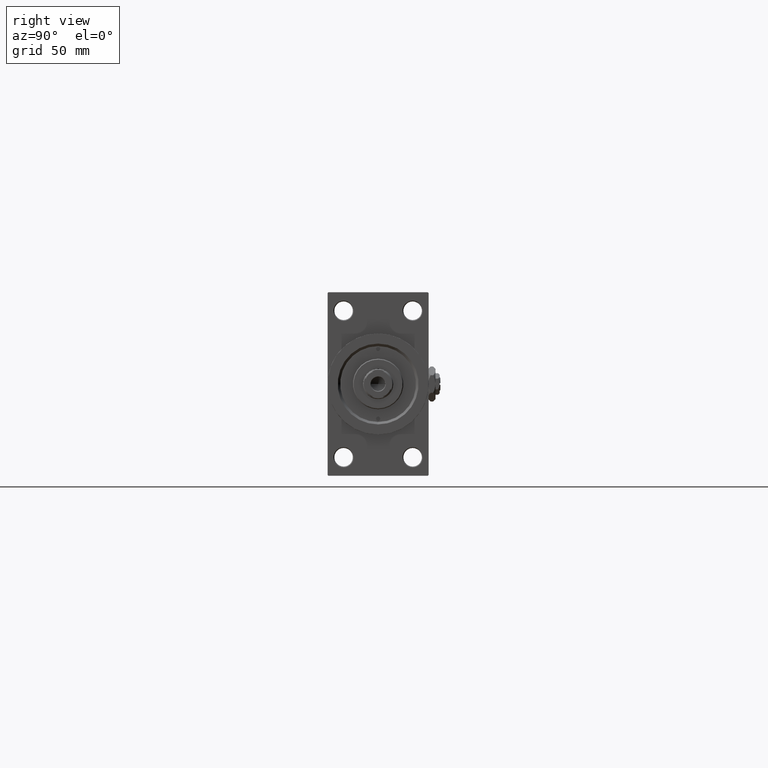
[diagram: clean part render]
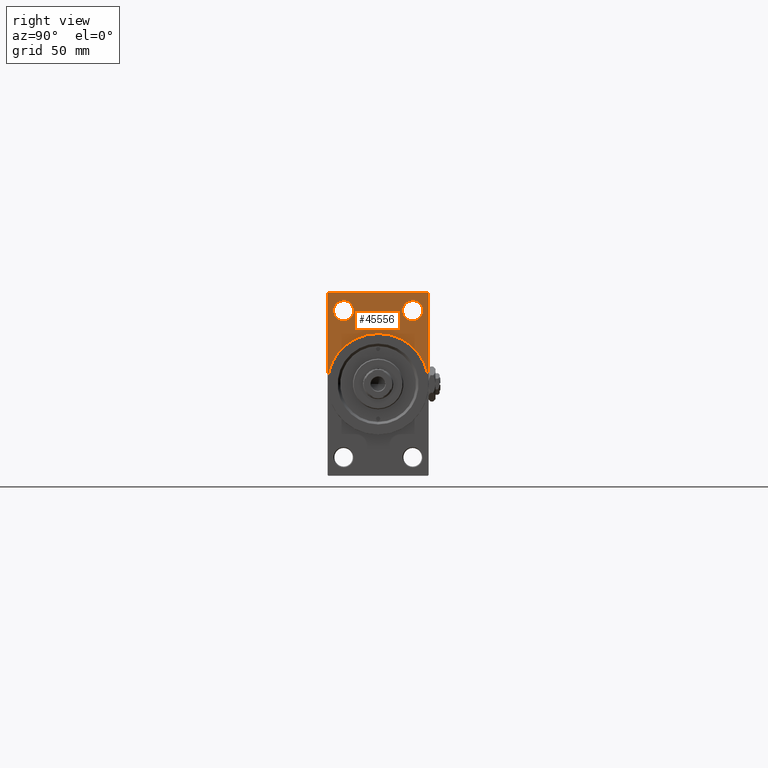
[diagram: same view with one face highlighted and labeled with its STEP entity id]
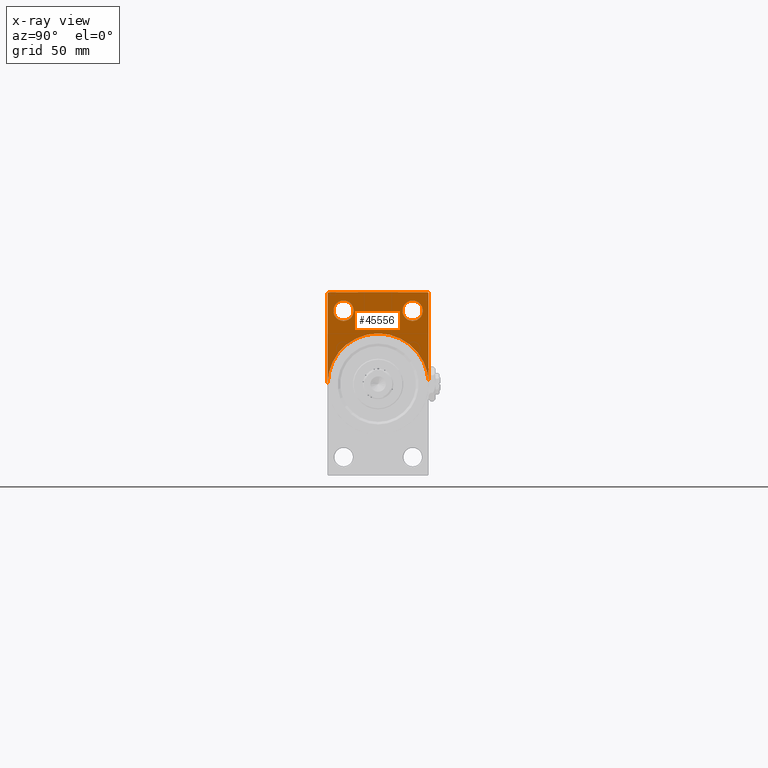
[diagram: x-ray of the same camera — body ghosted, the highlighted face saturated]
A machine part, right view. The second image highlights one B-rep face of the part: STEP entity #45556.
The next image is the same camera in x-ray: the body ghosted, the highlighted face saturated — about 0% of this face is hidden behind the body in this view.
In plain terms, the highlighted planar face has unit normal (-1, 0, 0).
Its self-contained STEP definition (entity closure, byte-faithful):
#573 = ORIENTED_EDGE ( 'NONE', *, *, #13550, .F. ) ;
#1189 = DIRECTION ( 'NONE',  ( -1.000000000000000000, 0.000000000000000000, -0.000000000000000000 ) ) ;
#1260 = AXIS2_PLACEMENT_3D ( 'NONE', #46105, #12041, #34903 ) ;
#2092 = ORIENTED_EDGE ( 'NONE', *, *, #22805, .T. ) ;
#3110 = CARTESIAN_POINT ( 'NONE',  ( 367.9999999999999432, 29.50000000000004974, 54.49999999999999289 ) ) ;
#4059 = VERTEX_POINT ( 'NONE', #6724 ) ;
#4080 = AXIS2_PLACEMENT_3D ( 'NONE', #5779, #43556, #35592 ) ;
#4086 = VECTOR ( 'NONE', #27338, 1000.000000000000000 ) ;
#4460 = CARTESIAN_POINT ( 'NONE',  ( 367.9999999999999432, 29.99999999999999645, 54.49999999999999289 ) ) ;
#4672 = CARTESIAN_POINT ( 'NONE',  ( 367.9999999999999432, 0.000000000000000000, 30.00000000000000000 ) ) ;
#5235 = CARTESIAN_POINT ( 'NONE',  ( 367.9999999999999432, 20.50000000000000000, 43.50000000000000000 ) ) ;
#5315 = CARTESIAN_POINT ( 'NONE',  ( 367.9999999999999432, 20.50000000000000000, 49.50000000000000000 ) ) ;
#5779 = CARTESIAN_POINT ( 'NONE',  ( 367.9999999999999432, 0.000000000000000000, 0.000000000000000000 ) ) ;
#6012 = EDGE_LOOP ( 'NONE', ( #12542, #22406 ) ) ;
#6400 = LINE ( 'NONE', #22308, #34433 ) ;
#6632 = VERTEX_POINT ( 'NONE', #5315 ) ;
#6724 = CARTESIAN_POINT ( 'NONE',  ( 367.9999999999999432, -20.50000000000000000, 49.50000000000000000 ) ) ;
#6753 = LINE ( 'NONE', #26626, #14357 ) ;
#6828 = CIRCLE ( 'NONE', #1260, 6.000000000000005329 ) ;
#6831 = DIRECTION ( 'NONE',  ( -1.000000000000000000, 0.000000000000000000, -0.000000000000000000 ) ) ;
#7834 = VERTEX_POINT ( 'NONE', #7887 ) ;
#7887 = CARTESIAN_POINT ( 'NONE',  ( 367.9999999999999432, 20.50000000000000000, 37.49999999999999289 ) ) ;
#8604 = DIRECTION ( 'NONE',  ( 0.000000000000000000, -1.000000000000000000, 1.156482317317871478E-16 ) ) ;
#9955 = DIRECTION ( 'NONE',  ( 0.000000000000000000, 0.000000000000000000, 1.000000000000000000 ) ) ;
#10153 = CIRCLE ( 'NONE', #22876, 6.000000000000005329 ) ;
#10481 = VERTEX_POINT ( 'NONE', #47993 ) ;
#10932 = CARTESIAN_POINT ( 'NONE',  ( 367.9999999999999432, 0.000000000000000000, 0.000000000000000000 ) ) ;
#11120 = EDGE_LOOP ( 'NONE', ( #14655, #28905, #23254, #23550, #19905, #573, #36595 ) ) ;
#11333 = CIRCLE ( 'NONE', #21626, 6.000000000000005329 ) ;
#12041 = DIRECTION ( 'NONE',  ( -1.000000000000000000, 0.000000000000000000, -0.000000000000000000 ) ) ;
#12284 = DIRECTION ( 'NONE',  ( 0.000000000000000000, 0.000000000000000000, 1.000000000000000000 ) ) ;
#12517 = EDGE_CURVE ( 'NONE', #13038, #46844, #14396, .T. ) ;
#12542 = ORIENTED_EDGE ( 'NONE', *, *, #17936, .T. ) ;
#12782 = CARTESIAN_POINT ( 'NONE',  ( 367.9999999999999432, 20.50000000000000000, 43.50000000000000000 ) ) ;
#13038 = VERTEX_POINT ( 'NONE', #20317 ) ;
#13410 = VERTEX_POINT ( 'NONE', #43296 ) ;
#13480 = VERTEX_POINT ( 'NONE', #37779 ) ;
#13550 = EDGE_CURVE ( 'NONE', #10481, #13038, #38756, .T. ) ;
#14357 = VECTOR ( 'NONE', #26386, 1000.000000000000000 ) ;
#14396 = CIRCLE ( 'NONE', #47765, 30.00000000000000000 ) ;
#14655 = ORIENTED_EDGE ( 'NONE', *, *, #36427, .T. ) ;
#14816 = VERTEX_POINT ( 'NONE', #40971 ) ;
#15633 = DIRECTION ( 'NONE',  ( -0.000000000000000000, 0.000000000000000000, 1.000000000000000000 ) ) ;
#17936 = EDGE_CURVE ( 'NONE', #7834, #6632, #11333, .T. ) ;
#18090 = LINE ( 'NONE', #33227, #48421 ) ;
#18227 = VECTOR ( 'NONE', #8604, 1000.000000000000000 ) ;
#19553 = AXIS2_PLACEMENT_3D ( 'NONE', #12782, #19758, #12284 ) ;
#19758 = DIRECTION ( 'NONE',  ( -1.000000000000000000, 0.000000000000000000, -0.000000000000000000 ) ) ;
#19860 = FACE_OUTER_BOUND ( 'NONE', #11120, .T. ) ;
#19905 = ORIENTED_EDGE ( 'NONE', *, *, #12517, .F. ) ;
#20317 = CARTESIAN_POINT ( 'NONE',  ( 367.9999999999999432, 30.00000000000000000, 0.000000000000000000 ) ) ;
#21626 = AXIS2_PLACEMENT_3D ( 'NONE', #5235, #44008, #9955 ) ;
#22308 = CARTESIAN_POINT ( 'NONE',  ( 367.9999999999999432, -30.00000000000000000, 53.99999999999988631 ) ) ;
#22406 = ORIENTED_EDGE ( 'NONE', *, *, #27172, .T. ) ;
#22698 = CIRCLE ( 'NONE', #19553, 6.000000000000005329 ) ;
#22805 = EDGE_CURVE ( 'NONE', #4059, #13480, #10153, .T. ) ;
#22876 = AXIS2_PLACEMENT_3D ( 'NONE', #26467, #6831, #26216 ) ;
#23254 = ORIENTED_EDGE ( 'NONE', *, *, #38881, .T. ) ;
#23550 = ORIENTED_EDGE ( 'NONE', *, *, #44227, .F. ) ;
#23822 = FACE_BOUND ( 'NONE', #6012, .T. ) ;
#25293 = EDGE_LOOP ( 'NONE', ( #30962, #2092 ) ) ;
#25523 = CIRCLE ( 'NONE', #4080, 30.00000000000000000 ) ;
#26216 = DIRECTION ( 'NONE',  ( 0.000000000000000000, 0.000000000000000000, 1.000000000000000000 ) ) ;
#26386 = DIRECTION ( 'NONE',  ( 0.000000000000000000, 0.000000000000000000, -1.000000000000000000 ) ) ;
#26467 = CARTESIAN_POINT ( 'NONE',  ( 367.9999999999999432, -20.50000000000000000, 43.50000000000000000 ) ) ;
#26626 = CARTESIAN_POINT ( 'NONE',  ( 367.9999999999999432, -30.00000000000000000, 54.50000000000000000 ) ) ;
#26796 = PLANE ( 'NONE',  #40673 ) ;
#26927 = CARTESIAN_POINT ( 'NONE',  ( 367.9999999999999432, -30.00000000000000000, 53.99999999999988631 ) ) ;
#27172 = EDGE_CURVE ( 'NONE', #6632, #7834, #22698, .T. ) ;
#27186 = EDGE_CURVE ( 'NONE', #13480, #4059, #6828, .T. ) ;
#27303 = CARTESIAN_POINT ( 'NONE',  ( 367.9999999999999432, 0.000000000000000000, 0.000000000000000000 ) ) ;
#27338 = DIRECTION ( 'NONE',  ( 0.000000000000000000, 0.000000000000000000, -1.000000000000000000 ) ) ;
#28486 = CARTESIAN_POINT ( 'NONE',  ( 367.9999999999999432, 29.99999999999999645, 54.49999999999999289 ) ) ;
#28905 = ORIENTED_EDGE ( 'NONE', *, *, #48572, .T. ) ;
#29596 = DIRECTION ( 'NONE',  ( 0.000000000000000000, 0.000000000000000000, -1.000000000000000000 ) ) ;
#30962 = ORIENTED_EDGE ( 'NONE', *, *, #27186, .T. ) ;
#33227 = CARTESIAN_POINT ( 'NONE',  ( 367.9999999999999432, 29.50000000000004974, 54.49999999999999289 ) ) ;
#34433 = VECTOR ( 'NONE', #48903, 1000.000000000000000 ) ;
#34903 = DIRECTION ( 'NONE',  ( 0.000000000000000000, 0.000000000000000000, 1.000000000000000000 ) ) ;
#35592 = DIRECTION ( 'NONE',  ( 0.000000000000000000, 0.000000000000000000, -1.000000000000000000 ) ) ;
#36196 = EDGE_CURVE ( 'NONE', #10481, #37292, #18090, .T. ) ;
#36427 = EDGE_CURVE ( 'NONE', #37292, #13410, #39925, .T. ) ;
#36595 = ORIENTED_EDGE ( 'NONE', *, *, #36196, .T. ) ;
#37292 = VERTEX_POINT ( 'NONE', #3110 ) ;
#37779 = CARTESIAN_POINT ( 'NONE',  ( 367.9999999999999432, -20.50000000000000000, 37.49999999999999289 ) ) ;
#37981 = FACE_BOUND ( 'NONE', #25293, .T. ) ;
#38756 = LINE ( 'NONE', #4460, #4086 ) ;
#38881 = EDGE_CURVE ( 'NONE', #39942, #14816, #6753, .T. ) ;
#39925 = LINE ( 'NONE', #28486, #18227 ) ;
#39942 = VERTEX_POINT ( 'NONE', #26927 ) ;
#40673 = AXIS2_PLACEMENT_3D ( 'NONE', #27303, #1189, #15633 ) ;
#40971 = CARTESIAN_POINT ( 'NONE',  ( 367.9999999999999432, -30.00000000000000000, 0.000000000000000000 ) ) ;
#43296 = CARTESIAN_POINT ( 'NONE',  ( 367.9999999999999432, -29.49999999999994671, 54.50000000000000000 ) ) ;
#43556 = DIRECTION ( 'NONE',  ( 1.000000000000000000, 0.000000000000000000, 0.000000000000000000 ) ) ;
#44008 = DIRECTION ( 'NONE',  ( -1.000000000000000000, 0.000000000000000000, -0.000000000000000000 ) ) ;
#44227 = EDGE_CURVE ( 'NONE', #46844, #14816, #25523, .T. ) ;
#45556 = ADVANCED_FACE ( 'NONE', ( #37981, #23822, #19860 ), #26796, .F. ) ;
#46105 = CARTESIAN_POINT ( 'NONE',  ( 367.9999999999999432, -20.50000000000000000, 43.50000000000000000 ) ) ;
#46844 = VERTEX_POINT ( 'NONE', #4672 ) ;
#47765 = AXIS2_PLACEMENT_3D ( 'NONE', #10932, #48490, #29596 ) ;
#47993 = CARTESIAN_POINT ( 'NONE',  ( 367.9999999999999432, 29.99999999999999645, 53.99999999999999289 ) ) ;
#48416 = DIRECTION ( 'NONE',  ( 0.000000000000000000, -0.7071067811865081598, 0.7071067811865868746 ) ) ;
#48421 = VECTOR ( 'NONE', #48416, 1000.000000000000000 ) ;
#48490 = DIRECTION ( 'NONE',  ( 1.000000000000000000, 0.000000000000000000, 0.000000000000000000 ) ) ;
#48572 = EDGE_CURVE ( 'NONE', #13410, #39942, #6400, .T. ) ;
#48903 = DIRECTION ( 'NONE',  ( -0.000000000000000000, -0.7071067811865058284, -0.7071067811865892061 ) ) ;